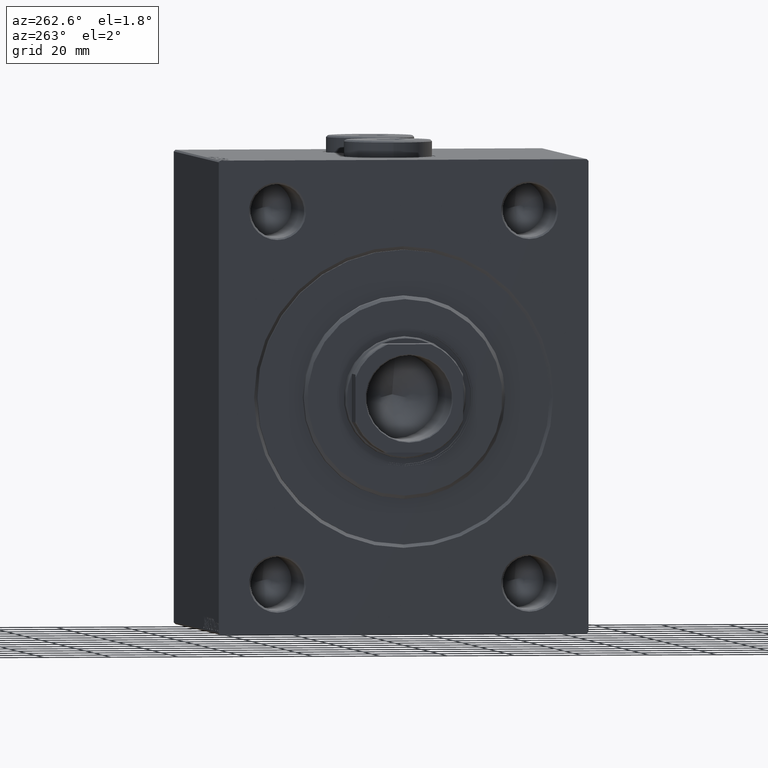
[diagram: clean part render]
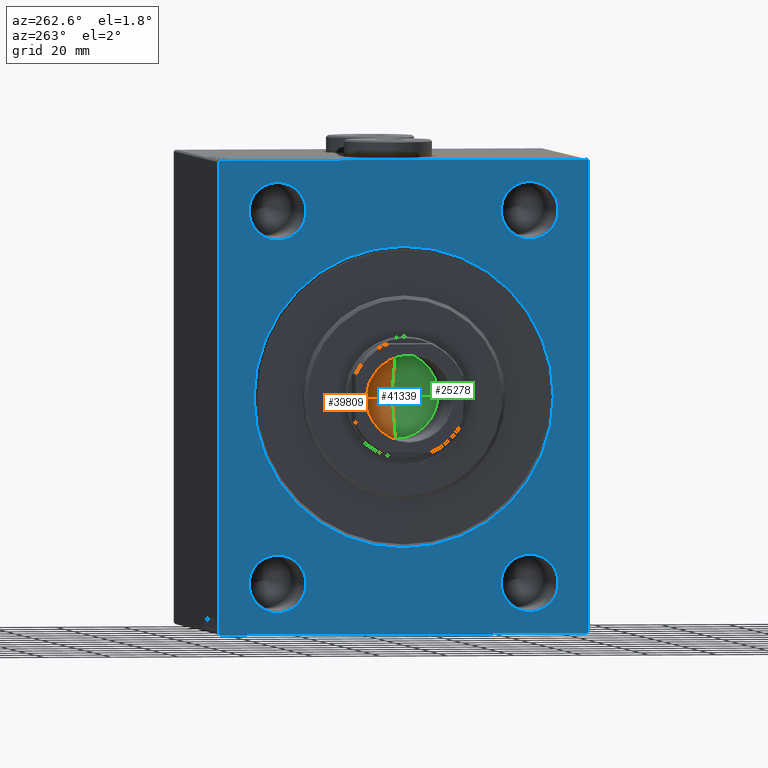
[diagram: same view with three faces highlighted in distinct colors, each labeled with its STEP entity id]
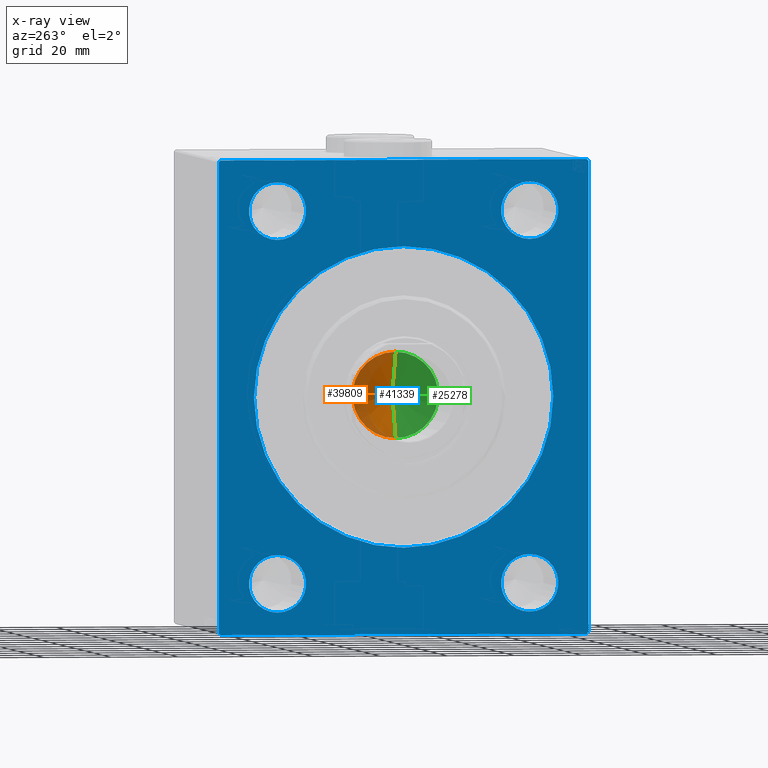
[diagram: x-ray of the same camera — body ghosted, the three highlighted faces saturated]
A machine part, auxiliary view with three faces highlighted in distinct colors.
The next image is the same camera in x-ray (body ghosted, the three faces saturated) — at least one of them is partly hidden behind the body in this view.
Their STEP definitions:

[orange] entity #39809 — the highlighted conical surface has half-angle 59 deg.
#633 = EDGE_LOOP ( 'NONE', ( #3583, #14771, #17219 ) ) ;
#3583 = ORIENTED_EDGE ( 'NONE', *, *, #11764, .F. ) ;
#3729 = VECTOR ( 'NONE', #31543, 1000.000000000000000 ) ;
#7002 = AXIS2_PLACEMENT_3D ( 'NONE', #33320, #28568, #39376 ) ;
#7398 = EDGE_CURVE ( 'NONE', #11588, #31803, #21218, .T. ) ;
#11588 = VERTEX_POINT ( 'NONE', #35958 ) ;
#11764 = EDGE_CURVE ( 'NONE', #11588, #25394, #27855, .T. ) ;
#13618 = DIRECTION ( 'NONE',  ( 0.8571673007021118895, 0.000000000000000000, 0.5150380749100549327 ) ) ;
#14771 = ORIENTED_EDGE ( 'NONE', *, *, #7398, .T. ) ;
#16356 = EDGE_CURVE ( 'NONE', #31803, #25394, #23771, .T. ) ;
#17219 = ORIENTED_EDGE ( 'NONE', *, *, #16356, .T. ) ;
#18001 = CONICAL_SURFACE ( 'NONE', #7002, 12.74999999999999467, 1.029744258676653645 ) ;
#21218 = LINE ( 'NONE', #24662, #38146 ) ;
#21648 = CARTESIAN_POINT ( 'NONE',  ( 0.000000000000000000, 0.000000000000000000, 32.00000000000000000 ) ) ;
#21664 = FACE_OUTER_BOUND ( 'NONE', #633, .T. ) ;
#23771 = CIRCLE ( 'NONE', #35542, 12.74999999999999467 ) ;
#24662 = CARTESIAN_POINT ( 'NONE',  ( 12.74999999999999467, 0.000000000000000000, 32.00000000000000000 ) ) ;
#25102 = DIRECTION ( 'NONE',  ( -0.000000000000000000, -0.000000000000000000, 1.000000000000000000 ) ) ;
#25394 = VERTEX_POINT ( 'NONE', #37854 ) ;
#27855 = LINE ( 'NONE', #28093, #3729 ) ;
#28093 = CARTESIAN_POINT ( 'NONE',  ( -12.74999999999999467, 1.561424668912874519E-15, 32.00000000000000000 ) ) ;
#28568 = DIRECTION ( 'NONE',  ( -0.000000000000000000, -0.000000000000000000, 1.000000000000000000 ) ) ;
#31543 = DIRECTION ( 'NONE',  ( -0.8571673007021118895, 1.049727191138618079E-16, 0.5150380749100549327 ) ) ;
#31803 = VERTEX_POINT ( 'NONE', #44942 ) ;
#33320 = CARTESIAN_POINT ( 'NONE',  ( 0.000000000000000000, 0.000000000000000000, 32.00000000000000000 ) ) ;
#35542 = AXIS2_PLACEMENT_3D ( 'NONE', #21648, #25102, #39813 ) ;
#35958 = CARTESIAN_POINT ( 'NONE',  ( -1.026246296720136938E-14, 0.000000000000000000, 24.33902710739860353 ) ) ;
#37854 = CARTESIAN_POINT ( 'NONE',  ( -12.74999999999999467, 1.561424668912874519E-15, 32.00000000000000000 ) ) ;
#38146 = VECTOR ( 'NONE', #13618, 1000.000000000000000 ) ;
#39376 = DIRECTION ( 'NONE',  ( 1.000000000000000000, 0.000000000000000000, 0.000000000000000000 ) ) ;
#39809 = ADVANCED_FACE ( 'NONE', ( #21664 ), #18001, .F. ) ;
#39813 = DIRECTION ( 'NONE',  ( 1.000000000000000000, 0.000000000000000000, 0.000000000000000000 ) ) ;
#44942 = CARTESIAN_POINT ( 'NONE',  ( 12.74999999999999467, 0.000000000000000000, 32.00000000000000000 ) ) ;

[blue] entity #41339 — the highlighted planar face has unit normal (1, 0, 0).
#394 = ORIENTED_EDGE ( 'NONE', *, *, #21916, .T. ) ;
#976 = DIRECTION ( 'NONE',  ( 0.000000000000000000, 0.000000000000000000, -1.000000000000000000 ) ) ;
#1117 = CARTESIAN_POINT ( 'NONE',  ( 0.000000000000000000, -55.00000000000000000, -70.00000000000000000 ) ) ;
#1183 = EDGE_CURVE ( 'NONE', #16909, #37083, #14532, .T. ) ;
#1372 = VERTEX_POINT ( 'NONE', #32214 ) ;
#1753 = DIRECTION ( 'NONE',  ( 1.000000000000000000, 0.000000000000000000, 0.000000000000000000 ) ) ;
#1863 = AXIS2_PLACEMENT_3D ( 'NONE', #25355, #15451, #976 ) ;
#2216 = CARTESIAN_POINT ( 'NONE',  ( 0.000000000000000000, 54.99999999999999289, 70.00000000000001421 ) ) ;
#2772 = CARTESIAN_POINT ( 'NONE',  ( 0.000000000000000000, -54.49999999999997158, -70.00000000000000000 ) ) ;
#2924 = VECTOR ( 'NONE', #35193, 999.9999999999998863 ) ;
#3086 = VECTOR ( 'NONE', #6580, 1000.000000000000000 ) ;
#3322 = ORIENTED_EDGE ( 'NONE', *, *, #18918, .T. ) ;
#3346 = CARTESIAN_POINT ( 'NONE',  ( 0.000000000000000000, -54.49999999999997158, -70.00000000000000000 ) ) ;
#3394 = CARTESIAN_POINT ( 'NONE',  ( 0.000000000000000000, 55.00000000000000711, -69.49999999999998579 ) ) ;
#3623 = VERTEX_POINT ( 'NONE', #26161 ) ;
#3782 = EDGE_LOOP ( 'NONE', ( #14884, #31442 ) ) ;
#3835 = DIRECTION ( 'NONE',  ( 0.000000000000000000, 0.000000000000000000, -1.000000000000000000 ) ) ;
#4050 = VERTEX_POINT ( 'NONE', #37361 ) ;
#4121 = LINE ( 'NONE', #21150, #2924 ) ;
#4420 = CARTESIAN_POINT ( 'NONE',  ( 0.000000000000000000, 0.000000000000000000, 0.000000000000000000 ) ) ;
#4745 = EDGE_CURVE ( 'NONE', #44333, #36498, #5458, .T. ) ;
#5458 = LINE ( 'NONE', #2216, #14529 ) ;
#5892 = DIRECTION ( 'NONE',  ( 0.000000000000000000, 0.000000000000000000, -1.000000000000000000 ) ) ;
#6061 = ORIENTED_EDGE ( 'NONE', *, *, #37151, .T. ) ;
#6193 = LINE ( 'NONE', #20218, #41128 ) ;
#6580 = DIRECTION ( 'NONE',  ( -0.000000000000000000, -0.7071067811865672237, 0.7071067811865279218 ) ) ;
#6945 = EDGE_CURVE ( 'NONE', #19290, #1372, #38104, .T. ) ;
#7467 = EDGE_LOOP ( 'NONE', ( #8477, #13981 ) ) ;
#7519 = VERTEX_POINT ( 'NONE', #3394 ) ;
#7690 = CARTESIAN_POINT ( 'NONE',  ( 0.000000000000000000, -55.00000000000000000, -69.50000000000000000 ) ) ;
#8321 = EDGE_CURVE ( 'NONE', #23777, #43927, #25663, .T. ) ;
#8477 = ORIENTED_EDGE ( 'NONE', *, *, #1183, .T. ) ;
#8624 = CARTESIAN_POINT ( 'NONE',  ( 0.000000000000000000, -37.49999999999999289, -54.99999999999999289 ) ) ;
#8886 = DIRECTION ( 'NONE',  ( 0.000000000000000000, 0.000000000000000000, -1.000000000000000000 ) ) ;
#8967 = CARTESIAN_POINT ( 'NONE',  ( 0.000000000000000000, 37.50000000000000000, 55.00000000000000711 ) ) ;
#9109 = ORIENTED_EDGE ( 'NONE', *, *, #19767, .F. ) ;
#9602 = EDGE_CURVE ( 'NONE', #44333, #10303, #6193, .T. ) ;
#10284 = VECTOR ( 'NONE', #22945, 1000.000000000000000 ) ;
#10303 = VERTEX_POINT ( 'NONE', #42971 ) ;
#10559 = CARTESIAN_POINT ( 'NONE',  ( 0.000000000000000000, 0.000000000000000000, 0.000000000000000000 ) ) ;
#10617 = CIRCLE ( 'NONE', #34096, 8.500000000000007105 ) ;
#10837 = ORIENTED_EDGE ( 'NONE', *, *, #16419, .T. ) ;
#11334 = DIRECTION ( 'NONE',  ( 0.000000000000000000, 0.000000000000000000, -1.000000000000000000 ) ) ;
#11608 = ORIENTED_EDGE ( 'NONE', *, *, #6945, .T. ) ;
#11643 = VERTEX_POINT ( 'NONE', #32739 ) ;
#11861 = EDGE_CURVE ( 'NONE', #28600, #36498, #12197, .T. ) ;
#11976 = ORIENTED_EDGE ( 'NONE', *, *, #8321, .T. ) ;
#12017 = FACE_BOUND ( 'NONE', #3782, .T. ) ;
#12197 = LINE ( 'NONE', #39580, #21365 ) ;
#12632 = VERTEX_POINT ( 'NONE', #2772 ) ;
#12769 = AXIS2_PLACEMENT_3D ( 'NONE', #20127, #15760, #34163 ) ;
#13287 = DIRECTION ( 'NONE',  ( 1.000000000000000000, 0.000000000000000000, 0.000000000000000000 ) ) ;
#13479 = CIRCLE ( 'NONE', #28173, 8.500000000000007105 ) ;
#13981 = ORIENTED_EDGE ( 'NONE', *, *, #35690, .T. ) ;
#14529 = VECTOR ( 'NONE', #33741, 1000.000000000000000 ) ;
#14532 = CIRCLE ( 'NONE', #24848, 8.500000000000007105 ) ;
#14884 = ORIENTED_EDGE ( 'NONE', *, *, #25424, .T. ) ;
#15128 = CARTESIAN_POINT ( 'NONE',  ( 0.000000000000000000, -55.00000000000000000, 69.50000000000002842 ) ) ;
#15451 = DIRECTION ( 'NONE',  ( 1.000000000000000000, 0.000000000000000000, 0.000000000000000000 ) ) ;
#15568 = EDGE_CURVE ( 'NONE', #43927, #23777, #28787, .T. ) ;
#15760 = DIRECTION ( 'NONE',  ( 1.000000000000000000, 0.000000000000000000, 0.000000000000000000 ) ) ;
#16011 = LINE ( 'NONE', #28758, #40320 ) ;
#16419 = EDGE_CURVE ( 'NONE', #16942, #3623, #13479, .T. ) ;
#16421 = CIRCLE ( 'NONE', #42140, 8.500000000000007105 ) ;
#16909 = VERTEX_POINT ( 'NONE', #25220 ) ;
#16942 = VERTEX_POINT ( 'NONE', #35356 ) ;
#16971 = DIRECTION ( 'NONE',  ( 0.000000000000000000, 0.000000000000000000, -1.000000000000000000 ) ) ;
#18687 = FACE_BOUND ( 'NONE', #36179, .T. ) ;
#18801 = CARTESIAN_POINT ( 'NONE',  ( 0.000000000000000000, 54.49999999999999289, 70.00000000000001421 ) ) ;
#18918 = EDGE_CURVE ( 'NONE', #3623, #16942, #22697, .T. ) ;
#19290 = VERTEX_POINT ( 'NONE', #29760 ) ;
#19767 = EDGE_CURVE ( 'NONE', #28600, #39535, #16011, .T. ) ;
#19835 = DIRECTION ( 'NONE',  ( 0.000000000000000000, -9.912705577010325549E-17, 1.000000000000000000 ) ) ;
#20127 = CARTESIAN_POINT ( 'NONE',  ( 0.000000000000000000, -37.49999999999999289, 55.00000000000000711 ) ) ;
#20218 = CARTESIAN_POINT ( 'NONE',  ( 0.000000000000000000, 54.49999999999999289, 70.00000000000001421 ) ) ;
#20442 = DIRECTION ( 'NONE',  ( -0.000000000000000000, 0.7071067811865671127, -0.7071067811865279218 ) ) ;
#20963 = ORIENTED_EDGE ( 'NONE', *, *, #15568, .T. ) ;
#21088 = EDGE_CURVE ( 'NONE', #12632, #4050, #22504, .T. ) ;
#21150 = CARTESIAN_POINT ( 'NONE',  ( 0.000000000000000000, 55.00000000000000711, -69.49999999999998579 ) ) ;
#21365 = VECTOR ( 'NONE', #25769, 1000.000000000000000 ) ;
#21389 = CIRCLE ( 'NONE', #42715, 8.500000000000007105 ) ;
#21656 = CARTESIAN_POINT ( 'NONE',  ( 0.000000000000000000, 0.000000000000000000, 44.50000000000001421 ) ) ;
#21916 = EDGE_CURVE ( 'NONE', #7519, #4050, #4121, .T. ) ;
#22504 = LINE ( 'NONE', #1117, #10284 ) ;
#22697 = CIRCLE ( 'NONE', #31502, 8.500000000000007105 ) ;
#22945 = DIRECTION ( 'NONE',  ( 0.000000000000000000, 1.000000000000000000, 1.261617073437677752E-16 ) ) ;
#23283 = ORIENTED_EDGE ( 'NONE', *, *, #11861, .T. ) ;
#23743 = CARTESIAN_POINT ( 'NONE',  ( 0.000000000000000000, 55.00000000000000711, -69.99999999999998579 ) ) ;
#23777 = VERTEX_POINT ( 'NONE', #21656 ) ;
#23898 = DIRECTION ( 'NONE',  ( 0.000000000000000000, 0.000000000000000000, -1.000000000000000000 ) ) ;
#24538 = CARTESIAN_POINT ( 'NONE',  ( 0.000000000000000000, -37.49999999999999289, -54.99999999999999289 ) ) ;
#24848 = AXIS2_PLACEMENT_3D ( 'NONE', #38206, #41201, #26935 ) ;
#25220 = CARTESIAN_POINT ( 'NONE',  ( 0.000000000000000000, 37.50000000000000000, -46.49999999999998579 ) ) ;
#25335 = EDGE_LOOP ( 'NONE', ( #11608, #6061 ) ) ;
#25355 = CARTESIAN_POINT ( 'NONE',  ( 0.000000000000000000, 0.000000000000000000, 0.000000000000000000 ) ) ;
#25424 = EDGE_CURVE ( 'NONE', #11643, #38303, #21389, .T. ) ;
#25578 = FACE_BOUND ( 'NONE', #42466, .T. ) ;
#25663 = CIRCLE ( 'NONE', #33743, 44.50000000000001421 ) ;
#25769 = DIRECTION ( 'NONE',  ( -0.000000000000000000, 0.7071067811865524577, 0.7071067811865426878 ) ) ;
#25892 = DIRECTION ( 'NONE',  ( 1.000000000000000000, 0.000000000000000000, 0.000000000000000000 ) ) ;
#26161 = CARTESIAN_POINT ( 'NONE',  ( 0.000000000000000000, 37.50000000000000000, 46.50000000000000000 ) ) ;
#26935 = DIRECTION ( 'NONE',  ( 0.000000000000000000, 0.000000000000000000, -1.000000000000000000 ) ) ;
#27498 = LINE ( 'NONE', #3346, #3086 ) ;
#27774 = CARTESIAN_POINT ( 'NONE',  ( 0.000000000000000000, 37.50000000000000000, 55.00000000000000711 ) ) ;
#27776 = EDGE_CURVE ( 'NONE', #12632, #39535, #27498, .T. ) ;
#28173 = AXIS2_PLACEMENT_3D ( 'NONE', #8967, #37032, #41163 ) ;
#28600 = VERTEX_POINT ( 'NONE', #15128 ) ;
#28758 = CARTESIAN_POINT ( 'NONE',  ( 0.000000000000000000, -55.00000000000000000, 70.00000000000000000 ) ) ;
#28787 = CIRCLE ( 'NONE', #29539, 44.50000000000001421 ) ;
#29260 = FACE_BOUND ( 'NONE', #25335, .T. ) ;
#29539 = AXIS2_PLACEMENT_3D ( 'NONE', #10559, #30803, #23898 ) ;
#29760 = CARTESIAN_POINT ( 'NONE',  ( 0.000000000000000000, -37.49999999999999289, -46.49999999999998579 ) ) ;
#30395 = ORIENTED_EDGE ( 'NONE', *, *, #27776, .T. ) ;
#30536 = EDGE_LOOP ( 'NONE', ( #9109, #23283, #37228, #37090, #36866, #394, #38051, #30395 ) ) ;
#30803 = DIRECTION ( 'NONE',  ( 1.000000000000000000, 0.000000000000000000, 0.000000000000000000 ) ) ;
#31437 = DIRECTION ( 'NONE',  ( 0.000000000000000000, 0.000000000000000000, -1.000000000000000000 ) ) ;
#31442 = ORIENTED_EDGE ( 'NONE', *, *, #35854, .T. ) ;
#31502 = AXIS2_PLACEMENT_3D ( 'NONE', #27774, #13287, #16971 ) ;
#32214 = CARTESIAN_POINT ( 'NONE',  ( 0.000000000000000000, -37.49999999999999289, -63.50000000000000000 ) ) ;
#32496 = FACE_BOUND ( 'NONE', #7467, .T. ) ;
#32645 = CARTESIAN_POINT ( 'NONE',  ( 0.000000000000000000, -54.50000000000002132, 70.00000000000000000 ) ) ;
#32739 = CARTESIAN_POINT ( 'NONE',  ( 0.000000000000000000, -37.49999999999999289, 63.50000000000001421 ) ) ;
#33417 = LINE ( 'NONE', #23743, #34222 ) ;
#33725 = CARTESIAN_POINT ( 'NONE',  ( 0.000000000000000000, -37.49999999999999289, 55.00000000000000711 ) ) ;
#33741 = DIRECTION ( 'NONE',  ( 0.000000000000000000, -1.000000000000000000, -1.261617073437677999E-16 ) ) ;
#33743 = AXIS2_PLACEMENT_3D ( 'NONE', #4420, #40061, #11334 ) ;
#33992 = DIRECTION ( 'NONE',  ( 1.000000000000000000, 0.000000000000000000, 0.000000000000000000 ) ) ;
#34096 = AXIS2_PLACEMENT_3D ( 'NONE', #24538, #33992, #31437 ) ;
#34163 = DIRECTION ( 'NONE',  ( 0.000000000000000000, 0.000000000000000000, -1.000000000000000000 ) ) ;
#34222 = VECTOR ( 'NONE', #19835, 1000.000000000000000 ) ;
#35193 = DIRECTION ( 'NONE',  ( 0.000000000000000000, -0.7071067811865230368, -0.7071067811865721087 ) ) ;
#35356 = CARTESIAN_POINT ( 'NONE',  ( 0.000000000000000000, 37.50000000000000000, 63.50000000000001421 ) ) ;
#35359 = DIRECTION ( 'NONE',  ( 1.000000000000000000, 0.000000000000000000, 0.000000000000000000 ) ) ;
#35436 = CARTESIAN_POINT ( 'NONE',  ( 0.000000000000000000, 5.449678256205723559E-15, -44.50000000000001421 ) ) ;
#35690 = EDGE_CURVE ( 'NONE', #37083, #16909, #16421, .T. ) ;
#35854 = EDGE_CURVE ( 'NONE', #38303, #11643, #40683, .T. ) ;
#36177 = PLANE ( 'NONE',  #1863 ) ;
#36179 = EDGE_LOOP ( 'NONE', ( #11976, #20963 ) ) ;
#36498 = VERTEX_POINT ( 'NONE', #32645 ) ;
#36866 = ORIENTED_EDGE ( 'NONE', *, *, #41949, .F. ) ;
#36981 = CARTESIAN_POINT ( 'NONE',  ( 0.000000000000000000, 37.50000000000000000, -63.50000000000000000 ) ) ;
#37032 = DIRECTION ( 'NONE',  ( 1.000000000000000000, 0.000000000000000000, 0.000000000000000000 ) ) ;
#37083 = VERTEX_POINT ( 'NONE', #36981 ) ;
#37090 = ORIENTED_EDGE ( 'NONE', *, *, #9602, .T. ) ;
#37151 = EDGE_CURVE ( 'NONE', #1372, #19290, #10617, .T. ) ;
#37228 = ORIENTED_EDGE ( 'NONE', *, *, #4745, .F. ) ;
#37361 = CARTESIAN_POINT ( 'NONE',  ( 0.000000000000000000, 54.50000000000004263, -69.99999999999998579 ) ) ;
#38051 = ORIENTED_EDGE ( 'NONE', *, *, #21088, .F. ) ;
#38057 = CARTESIAN_POINT ( 'NONE',  ( 0.000000000000000000, -37.49999999999999289, 46.50000000000000000 ) ) ;
#38104 = CIRCLE ( 'NONE', #39589, 8.500000000000007105 ) ;
#38206 = CARTESIAN_POINT ( 'NONE',  ( 0.000000000000000000, 37.50000000000000000, -54.99999999999999289 ) ) ;
#38303 = VERTEX_POINT ( 'NONE', #38057 ) ;
#39254 = DIRECTION ( 'NONE',  ( 0.000000000000000000, 0.000000000000000000, -1.000000000000000000 ) ) ;
#39535 = VERTEX_POINT ( 'NONE', #7690 ) ;
#39580 = CARTESIAN_POINT ( 'NONE',  ( 0.000000000000000000, -55.00000000000000000, 69.50000000000002842 ) ) ;
#39589 = AXIS2_PLACEMENT_3D ( 'NONE', #8624, #25892, #39254 ) ;
#39614 = FACE_OUTER_BOUND ( 'NONE', #30536, .T. ) ;
#40061 = DIRECTION ( 'NONE',  ( 1.000000000000000000, 0.000000000000000000, 0.000000000000000000 ) ) ;
#40320 = VECTOR ( 'NONE', #8886, 1000.000000000000000 ) ;
#40683 = CIRCLE ( 'NONE', #12769, 8.500000000000007105 ) ;
#41128 = VECTOR ( 'NONE', #20442, 1000.000000000000000 ) ;
#41163 = DIRECTION ( 'NONE',  ( 0.000000000000000000, 0.000000000000000000, -1.000000000000000000 ) ) ;
#41201 = DIRECTION ( 'NONE',  ( 1.000000000000000000, 0.000000000000000000, 0.000000000000000000 ) ) ;
#41339 = ADVANCED_FACE ( 'NONE', ( #18687, #29260, #12017, #25578, #32496, #39614 ), #36177, .F. ) ;
#41949 = EDGE_CURVE ( 'NONE', #7519, #10303, #33417, .T. ) ;
#42140 = AXIS2_PLACEMENT_3D ( 'NONE', #44853, #35359, #3835 ) ;
#42466 = EDGE_LOOP ( 'NONE', ( #10837, #3322 ) ) ;
#42715 = AXIS2_PLACEMENT_3D ( 'NONE', #33725, #1753, #5892 ) ;
#42971 = CARTESIAN_POINT ( 'NONE',  ( 0.000000000000000000, 54.99999999999999289, 69.50000000000004263 ) ) ;
#43927 = VERTEX_POINT ( 'NONE', #35436 ) ;
#44333 = VERTEX_POINT ( 'NONE', #18801 ) ;
#44853 = CARTESIAN_POINT ( 'NONE',  ( 0.000000000000000000, 37.50000000000000000, -54.99999999999999289 ) ) ;

[green] entity #25278 — the highlighted conical surface has half-angle 59 deg.
#140 = ORIENTED_EDGE ( 'NONE', *, *, #11764, .T. ) ;
#3729 = VECTOR ( 'NONE', #31543, 1000.000000000000000 ) ;
#7398 = EDGE_CURVE ( 'NONE', #11588, #31803, #21218, .T. ) ;
#7536 = DIRECTION ( 'NONE',  ( 1.000000000000000000, 0.000000000000000000, 0.000000000000000000 ) ) ;
#11118 = CONICAL_SURFACE ( 'NONE', #39023, 12.74999999999999467, 1.029744258676653645 ) ;
#11588 = VERTEX_POINT ( 'NONE', #35958 ) ;
#11764 = EDGE_CURVE ( 'NONE', #11588, #25394, #27855, .T. ) ;
#13618 = DIRECTION ( 'NONE',  ( 0.8571673007021118895, 0.000000000000000000, 0.5150380749100549327 ) ) ;
#14431 = FACE_OUTER_BOUND ( 'NONE', #15823, .T. ) ;
#15823 = EDGE_LOOP ( 'NONE', ( #18212, #140, #41875 ) ) ;
#18212 = ORIENTED_EDGE ( 'NONE', *, *, #7398, .F. ) ;
#21218 = LINE ( 'NONE', #24662, #38146 ) ;
#21378 = EDGE_CURVE ( 'NONE', #25394, #31803, #45526, .T. ) ;
#24662 = CARTESIAN_POINT ( 'NONE',  ( 12.74999999999999467, 0.000000000000000000, 32.00000000000000000 ) ) ;
#25013 = DIRECTION ( 'NONE',  ( -0.000000000000000000, -0.000000000000000000, 1.000000000000000000 ) ) ;
#25278 = ADVANCED_FACE ( 'NONE', ( #14431 ), #11118, .F. ) ;
#25394 = VERTEX_POINT ( 'NONE', #37854 ) ;
#27155 = AXIS2_PLACEMENT_3D ( 'NONE', #42028, #35128, #28217 ) ;
#27855 = LINE ( 'NONE', #28093, #3729 ) ;
#28093 = CARTESIAN_POINT ( 'NONE',  ( -12.74999999999999467, 1.561424668912874519E-15, 32.00000000000000000 ) ) ;
#28217 = DIRECTION ( 'NONE',  ( 1.000000000000000000, 0.000000000000000000, 0.000000000000000000 ) ) ;
#31543 = DIRECTION ( 'NONE',  ( -0.8571673007021118895, 1.049727191138618079E-16, 0.5150380749100549327 ) ) ;
#31803 = VERTEX_POINT ( 'NONE', #44942 ) ;
#35128 = DIRECTION ( 'NONE',  ( -0.000000000000000000, -0.000000000000000000, 1.000000000000000000 ) ) ;
#35958 = CARTESIAN_POINT ( 'NONE',  ( -1.026246296720136938E-14, 0.000000000000000000, 24.33902710739860353 ) ) ;
#37854 = CARTESIAN_POINT ( 'NONE',  ( -12.74999999999999467, 1.561424668912874519E-15, 32.00000000000000000 ) ) ;
#38146 = VECTOR ( 'NONE', #13618, 1000.000000000000000 ) ;
#39023 = AXIS2_PLACEMENT_3D ( 'NONE', #42506, #25013, #7536 ) ;
#41875 = ORIENTED_EDGE ( 'NONE', *, *, #21378, .T. ) ;
#42028 = CARTESIAN_POINT ( 'NONE',  ( 0.000000000000000000, 0.000000000000000000, 32.00000000000000000 ) ) ;
#42506 = CARTESIAN_POINT ( 'NONE',  ( 0.000000000000000000, 0.000000000000000000, 32.00000000000000000 ) ) ;
#44942 = CARTESIAN_POINT ( 'NONE',  ( 12.74999999999999467, 0.000000000000000000, 32.00000000000000000 ) ) ;
#45526 = CIRCLE ( 'NONE', #27155, 12.74999999999999467 ) ;